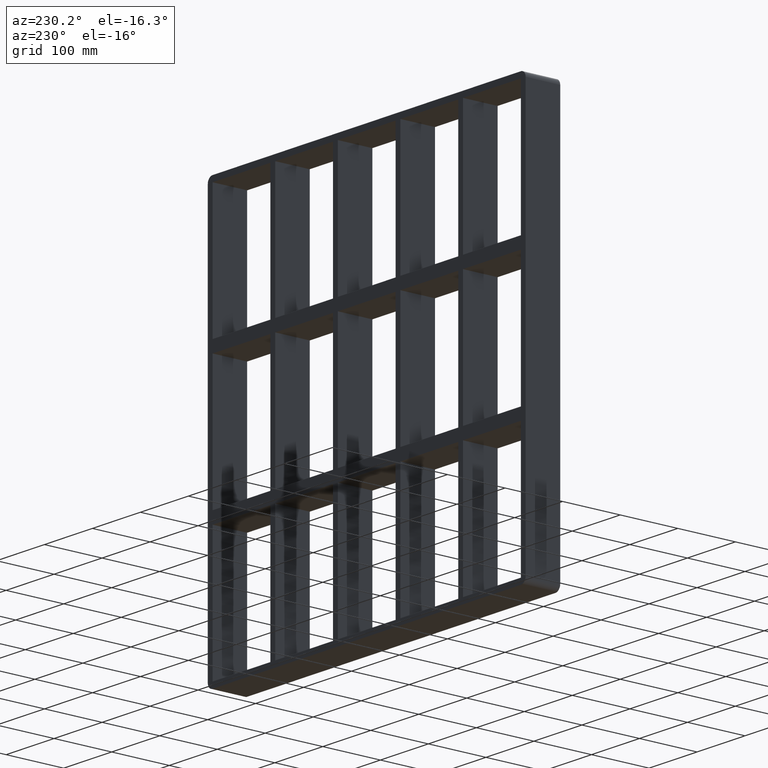
[diagram: clean part render]
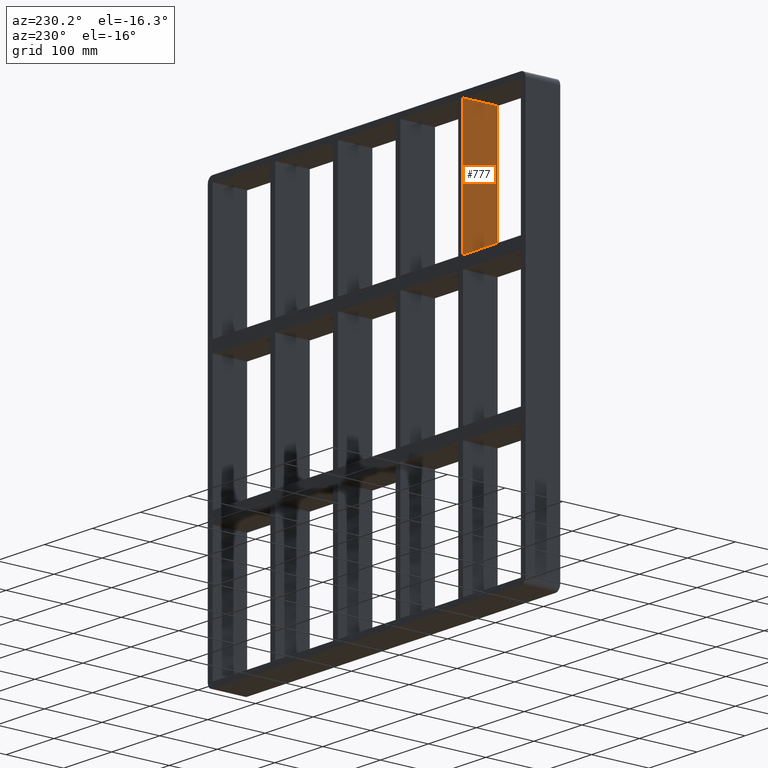
[diagram: same view with one face highlighted and labeled with its STEP entity id]
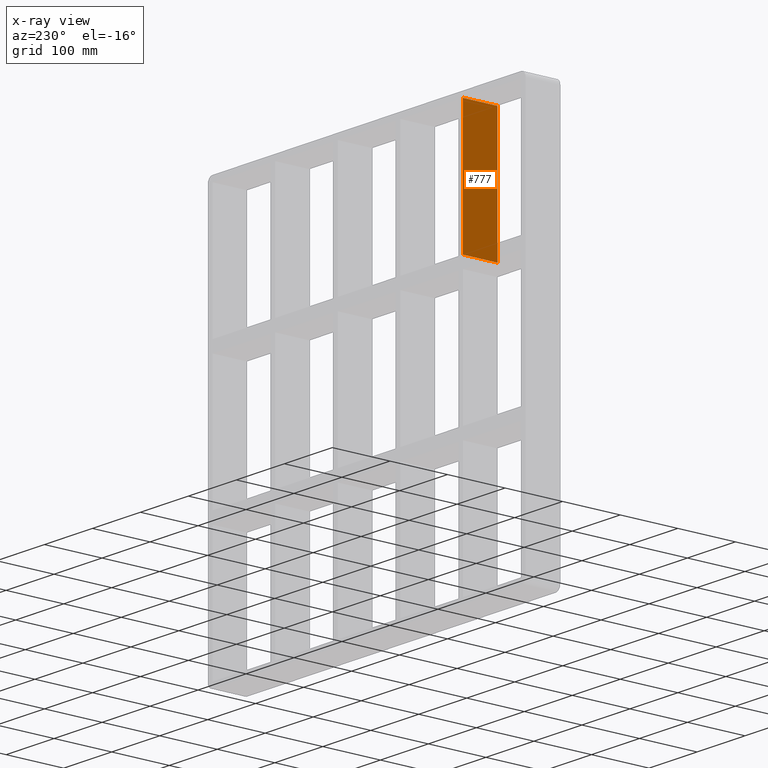
[diagram: x-ray of the same camera — body ghosted, the highlighted face saturated]
A machine part, auxiliary view. The second image highlights one B-rep face of the part: STEP entity #777.
The next image is the same camera in x-ray: the body ghosted, the highlighted face saturated — about 0% of this face is hidden behind the body in this view.
In plain terms, the highlighted planar face has unit normal (-1, 0, 0).
Its self-contained STEP definition (entity closure, byte-faithful):
#273=CARTESIAN_POINT('',(-200.75000000000134,57.0,129.0));
#274=VERTEX_POINT('',#273);
#275=CARTESIAN_POINT('',(-200.75000000000134,-3.0,129.0));
#276=VERTEX_POINT('',#275);
#277=CARTESIAN_POINT('',(-200.75000000000134,57.0,128.99999999999997));
#278=DIRECTION('',(0.0,-1.0,0.0));
#279=VECTOR('',#278,60.0);
#280=LINE('',#277,#279);
#281=EDGE_CURVE('',#274,#276,#280,.T.);
#747=CARTESIAN_POINT('',(-200.75000000000131,-3.0,-346.99999999999994));
#748=DIRECTION('',(-1.0,0.0,0.0));
#749=DIRECTION('',(0.0,0.0,1.0));
#750=AXIS2_PLACEMENT_3D('',#747,#748,#749);
#751=PLANE('',#750);
#752=ORIENTED_EDGE('',*,*,#281,.T.);
#753=CARTESIAN_POINT('',(-200.75000000000136,-3.0,347.00000000000011));
#754=VERTEX_POINT('',#753);
#755=CARTESIAN_POINT('',(-200.75000000000136,-3.0,129.0));
#756=DIRECTION('',(0.0,0.0,1.0));
#757=VECTOR('',#756,218.00000000000006);
#758=LINE('',#755,#757);
#759=EDGE_CURVE('',#276,#754,#758,.T.);
#760=ORIENTED_EDGE('',*,*,#759,.T.);
#761=CARTESIAN_POINT('',(-200.75000000000136,57.0,347.00000000000011));
#762=VERTEX_POINT('',#761);
#763=CARTESIAN_POINT('',(-200.75000000000136,57.000000000000007,347.0));
#764=DIRECTION('',(0.0,-1.0,0.0));
#765=VECTOR('',#764,60.000000000000007);
#766=LINE('',#763,#765);
#767=EDGE_CURVE('',#762,#754,#766,.T.);
#768=ORIENTED_EDGE('',*,*,#767,.F.);
#769=CARTESIAN_POINT('',(-200.75000000000136,57.0,129.0));
#770=DIRECTION('',(0.0,0.0,1.0));
#771=VECTOR('',#770,218.00000000000006);
#772=LINE('',#769,#771);
#773=EDGE_CURVE('',#274,#762,#772,.T.);
#774=ORIENTED_EDGE('',*,*,#773,.F.);
#775=EDGE_LOOP('',(#752,#760,#768,#774));
#776=FACE_OUTER_BOUND('',#775,.T.);
#777=ADVANCED_FACE('',(#776),#751,.T.);